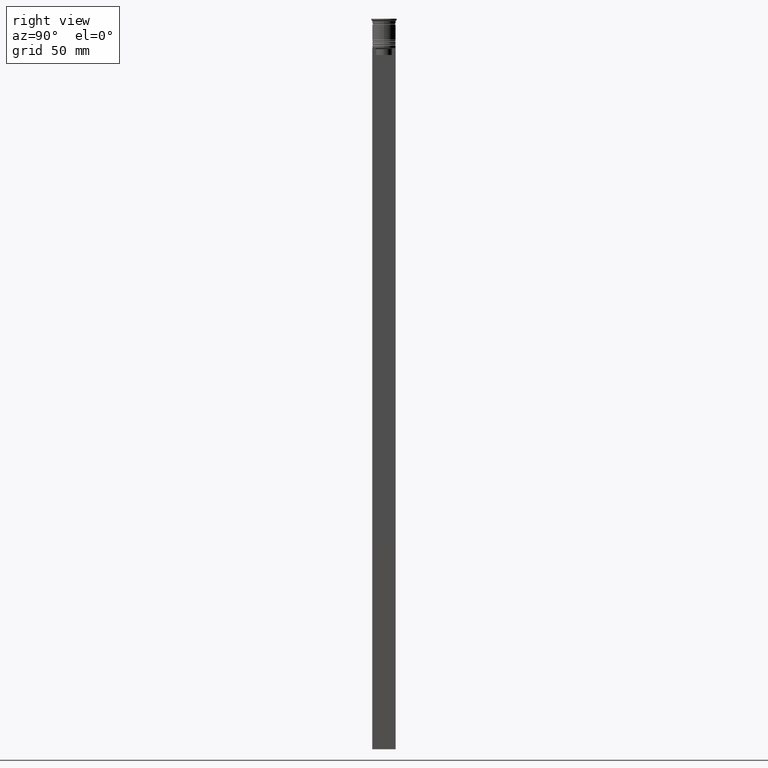
[diagram: clean part render]
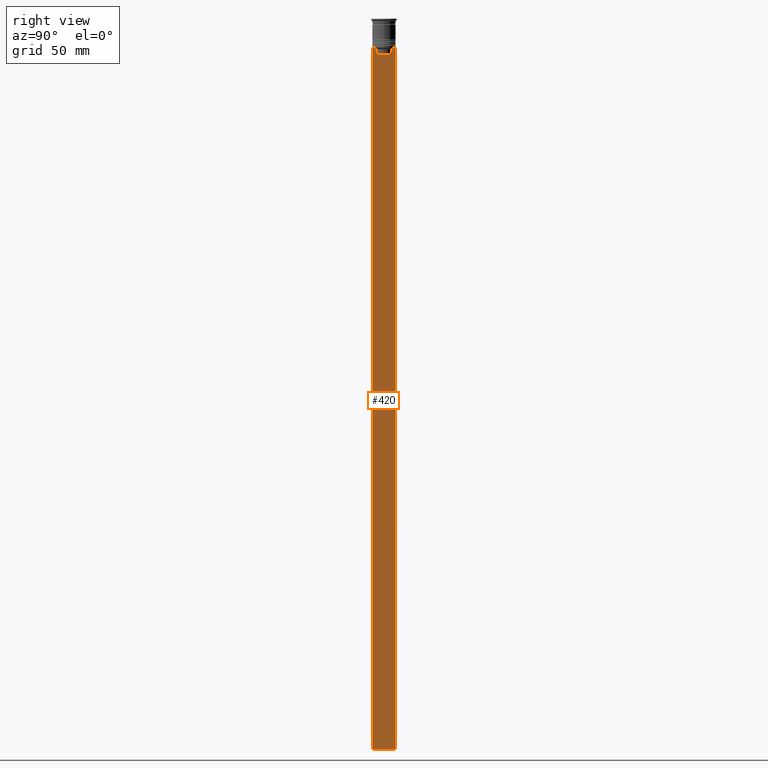
[diagram: same view with one face highlighted and labeled with its STEP entity id]
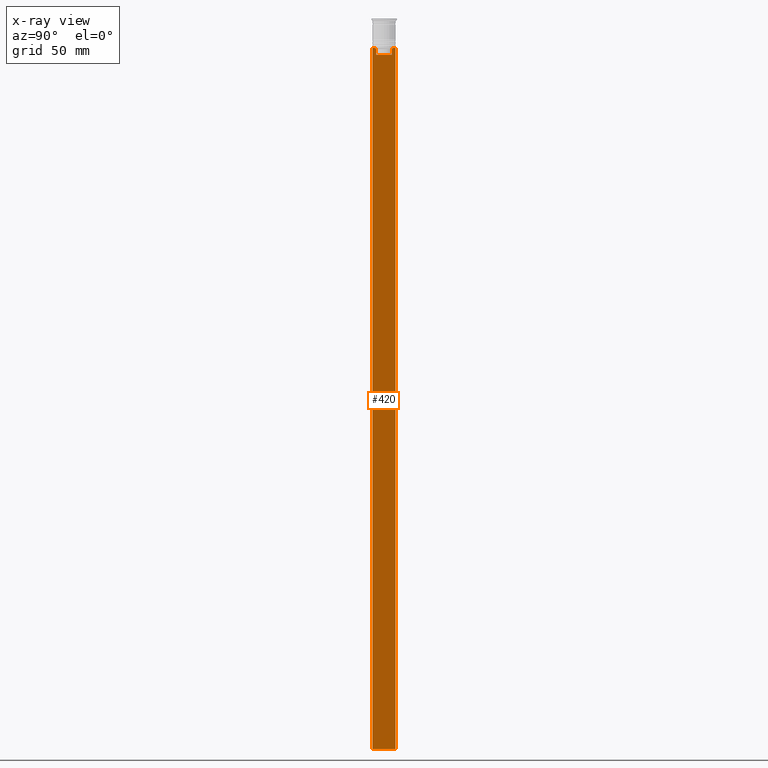
[diagram: x-ray of the same camera — body ghosted, the highlighted face saturated]
A machine part, right view. The second image highlights one B-rep face of the part: STEP entity #420.
The next image is the same camera in x-ray: the body ghosted, the highlighted face saturated — about 0% of this face is hidden behind the body in this view.
In plain terms, the highlighted planar face has unit normal (-1, 0, 0).
Its self-contained STEP definition (entity closure, byte-faithful):
#1 = CARTESIAN_POINT ( 'NONE',  ( 0.5000000000000000000, -4.999999999999999112, -312.5000000000000000 ) ) ;
#12 = CARTESIAN_POINT ( 'NONE',  ( 0.5000000000000000000, -3.531412985305424801, -12.83345201382502765 ) ) ;
#60 = VERTEX_POINT ( 'NONE', #981 ) ;
#67 = EDGE_CURVE ( 'NONE', #373, #2125, #1373, .T. ) ;
#129 = CARTESIAN_POINT ( 'NONE',  ( 0.5000000000000000000, 5.000000000000000888, -12.50000000000000000 ) ) ;
#145 = EDGE_CURVE ( 'NONE', #2465, #1955, #2222, .T. ) ;
#146 = VECTOR ( 'NONE', #2388, 1000.000000000000000 ) ;
#151 = DIRECTION ( 'NONE',  ( 0.000000000000000000, -1.000000000000000000, 0.000000000000000000 ) ) ;
#180 = EDGE_CURVE ( 'NONE', #2125, #1859, #434, .T. ) ;
#203 = CARTESIAN_POINT ( 'NONE',  ( 0.5000000000000000000, -3.867815921162742754, -12.50000000000000000 ) ) ;
#235 = EDGE_CURVE ( 'NONE', #1955, #60, #1204, .T. ) ;
#244 = ORIENTED_EDGE ( 'NONE', *, *, #438, .T. ) ;
#320 = CARTESIAN_POINT ( 'NONE',  ( 0.5000000000000000000, 3.531412678228260216, -12.83345231756357840 ) ) ;
#321 = VECTOR ( 'NONE', #1223, 1000.000000000000000 ) ;
#359 = CARTESIAN_POINT ( 'NONE',  ( 0.5000000000000000000, 3.399999999999998135, -15.50000000000000000 ) ) ;
#362 = DIRECTION ( 'NONE',  ( -1.000000000000000000, 0.000000000000000000, 0.000000000000000000 ) ) ;
#364 = DIRECTION ( 'NONE',  ( 0.000000000000000000, 0.000000000000000000, -1.000000000000000000 ) ) ;
#373 = VERTEX_POINT ( 'NONE', #1831 ) ;
#420 = ADVANCED_FACE ( 'NONE', ( #944 ), #2098, .F. ) ;
#434 = LINE ( 'NONE', #1, #321 ) ;
#438 = EDGE_CURVE ( 'NONE', #60, #2188, #604, .T. ) ;
#442 = CARTESIAN_POINT ( 'NONE',  ( 0.5000000000000000000, 3.363034344160045208, 0.000000000000000000 ) ) ;
#461 = VECTOR ( 'NONE', #151, 1000.000000000000000 ) ;
#492 = ORIENTED_EDGE ( 'NONE', *, *, #235, .T. ) ;
#506 = VECTOR ( 'NONE', #1239, 1000.000000000000000 ) ;
#533 = CARTESIAN_POINT ( 'NONE',  ( 0.5000000000000000000, -4.874423042781575788, -12.50000000000000000 ) ) ;
#587 = CARTESIAN_POINT ( 'NONE',  ( 0.5000000000000000000, -4.999999999999999112, -12.50000000000000000 ) ) ;
#588 = ORIENTED_EDGE ( 'NONE', *, *, #815, .T. ) ;
#604 = B_SPLINE_CURVE_WITH_KNOTS ( 'NONE', 3,
 ( #1731, #1163, #320, #1709 ),
 .UNSPECIFIED., .F., .F.,
 ( 4, 4 ),
 ( 0.006644825462451552783, 0.007355321358912435097 ),
 .UNSPECIFIED. ) ;
#613 = DIRECTION ( 'NONE',  ( 0.000000000000000000, -1.000000000000000000, 0.000000000000000000 ) ) ;
#631 = EDGE_CURVE ( 'NONE', #2465, #1859, #1201, .T. ) ;
#640 = DIRECTION ( 'NONE',  ( 0.000000000000000000, 0.000000000000000000, -1.000000000000000000 ) ) ;
#657 = EDGE_CURVE ( 'NONE', #1664, #373, #1612, .T. ) ;
#705 = ORIENTED_EDGE ( 'NONE', *, *, #2224, .T. ) ;
#744 = B_SPLINE_CURVE_WITH_KNOTS ( 'NONE', 3,
 ( #1804, #12, #1953, #2219 ),
 .UNSPECIFIED., .F., .F.,
 ( 4, 4 ),
 ( 0.01632394437298965648, 0.01703543518243618576 ),
 .UNSPECIFIED. ) ;
#800 = CARTESIAN_POINT ( 'NONE',  ( 0.5000000000000000000, -4.999999999999999112, -12.50000000000000000 ) ) ;
#812 = CARTESIAN_POINT ( 'NONE',  ( 0.5000000000000000000, -4.999999999999999112, -12.50000000000000000 ) ) ;
#815 = EDGE_CURVE ( 'NONE', #2188, #2526, #1437, .T. ) ;
#929 = EDGE_CURVE ( 'NONE', #2526, #2092, #1123, .T. ) ;
#944 = FACE_OUTER_BOUND ( 'NONE', #2424, .T. ) ;
#981 = CARTESIAN_POINT ( 'NONE',  ( 0.5000000000000000000, 3.867815921162742754, -12.50000000000000000 ) ) ;
#1003 = AXIS2_PLACEMENT_3D ( 'NONE', #1947, #362, #1330 ) ;
#1057 = ORIENTED_EDGE ( 'NONE', *, *, #2285, .T. ) ;
#1069 = VERTEX_POINT ( 'NONE', #1457 ) ;
#1123 = LINE ( 'NONE', #359, #461 ) ;
#1163 = CARTESIAN_POINT ( 'NONE',  ( 0.5000000000000000000, 3.699657965831574913, -12.66677026074361301 ) ) ;
#1176 = DIRECTION ( 'NONE',  ( -0.000000000000000000, -0.000000000000000000, 1.000000000000000000 ) ) ;
#1201 = LINE ( 'NONE', #2583, #2236 ) ;
#1204 = LINE ( 'NONE', #800, #146 ) ;
#1205 = VECTOR ( 'NONE', #2364, 1000.000000000000000 ) ;
#1218 = ORIENTED_EDGE ( 'NONE', *, *, #145, .T. ) ;
#1223 = DIRECTION ( 'NONE',  ( 0.000000000000000000, 1.000000000000000000, 0.000000000000000000 ) ) ;
#1239 = DIRECTION ( 'NONE',  ( 0.000000000000000000, 0.000000000000000000, -1.000000000000000000 ) ) ;
#1330 = DIRECTION ( 'NONE',  ( 0.000000000000000000, 0.000000000000000000, 1.000000000000000000 ) ) ;
#1341 = VECTOR ( 'NONE', #1176, 1000.000000000000000 ) ;
#1373 = LINE ( 'NONE', #2158, #2358 ) ;
#1434 = VERTEX_POINT ( 'NONE', #203 ) ;
#1436 = LINE ( 'NONE', #1986, #1341 ) ;
#1437 = LINE ( 'NONE', #442, #506 ) ;
#1457 = CARTESIAN_POINT ( 'NONE',  ( 0.5000000000000000000, -3.363034344160045208, -13.00000000000000178 ) ) ;
#1461 = CARTESIAN_POINT ( 'NONE',  ( 0.5000000000000000000, -4.999999999999999112, -12.50000000000000000 ) ) ;
#1466 = ORIENTED_EDGE ( 'NONE', *, *, #180, .T. ) ;
#1513 = CARTESIAN_POINT ( 'NONE',  ( 0.5000000000000000000, -4.999999999999999112, -312.5000000000000000 ) ) ;
#1612 = LINE ( 'NONE', #1461, #1946 ) ;
#1664 = VERTEX_POINT ( 'NONE', #533 ) ;
#1679 = CARTESIAN_POINT ( 'NONE',  ( 0.5000000000000000000, 4.874423042781575788, -12.50000000000000000 ) ) ;
#1709 = CARTESIAN_POINT ( 'NONE',  ( 0.5000000000000000000, 3.363034344160045208, -13.00000000000000178 ) ) ;
#1731 = CARTESIAN_POINT ( 'NONE',  ( 0.5000000000000000000, 3.867815921162742754, -12.50000000000000000 ) ) ;
#1751 = CARTESIAN_POINT ( 'NONE',  ( 0.5000000000000000000, 3.363034344160045652, -15.50000000000000000 ) ) ;
#1804 = CARTESIAN_POINT ( 'NONE',  ( 0.5000000000000000000, -3.363034344160045208, -13.00000000000000178 ) ) ;
#1809 = ORIENTED_EDGE ( 'NONE', *, *, #1852, .T. ) ;
#1831 = CARTESIAN_POINT ( 'NONE',  ( 0.5000000000000000000, -4.999999999999999112, -12.50000000000000000 ) ) ;
#1852 = EDGE_CURVE ( 'NONE', #1069, #1434, #744, .T. ) ;
#1859 = VERTEX_POINT ( 'NONE', #2207 ) ;
#1946 = VECTOR ( 'NONE', #2247, 1000.000000000000000 ) ;
#1947 = CARTESIAN_POINT ( 'NONE',  ( 0.5000000000000000000, -4.999999999999999112, -2.450124378879110054 ) ) ;
#1953 = CARTESIAN_POINT ( 'NONE',  ( 0.5000000000000000000, -3.699658232838647365, -12.66676999593996555 ) ) ;
#1955 = VERTEX_POINT ( 'NONE', #1679 ) ;
#1986 = CARTESIAN_POINT ( 'NONE',  ( 0.5000000000000000000, -3.363034344160045208, 0.000000000000000000 ) ) ;
#2092 = VERTEX_POINT ( 'NONE', #2150 ) ;
#2098 = PLANE ( 'NONE',  #1003 ) ;
#2103 = ORIENTED_EDGE ( 'NONE', *, *, #67, .T. ) ;
#2125 = VERTEX_POINT ( 'NONE', #1513 ) ;
#2150 = CARTESIAN_POINT ( 'NONE',  ( 0.5000000000000000000, -3.363034344160045652, -15.50000000000000000 ) ) ;
#2158 = CARTESIAN_POINT ( 'NONE',  ( 0.5000000000000000000, -4.999999999999999112, -2.450124378879110054 ) ) ;
#2174 = ORIENTED_EDGE ( 'NONE', *, *, #929, .T. ) ;
#2188 = VERTEX_POINT ( 'NONE', #2580 ) ;
#2207 = CARTESIAN_POINT ( 'NONE',  ( 0.5000000000000000000, 5.000000000000000888, -312.5000000000000000 ) ) ;
#2219 = CARTESIAN_POINT ( 'NONE',  ( 0.5000000000000000000, -3.867815921162742754, -12.50000000000000000 ) ) ;
#2222 = LINE ( 'NONE', #812, #1205 ) ;
#2224 = EDGE_CURVE ( 'NONE', #1434, #1664, #2395, .T. ) ;
#2236 = VECTOR ( 'NONE', #640, 1000.000000000000000 ) ;
#2247 = DIRECTION ( 'NONE',  ( 0.000000000000000000, -1.000000000000000000, 0.000000000000000000 ) ) ;
#2284 = VECTOR ( 'NONE', #613, 1000.000000000000000 ) ;
#2285 = EDGE_CURVE ( 'NONE', #2092, #1069, #1436, .T. ) ;
#2358 = VECTOR ( 'NONE', #364, 1000.000000000000000 ) ;
#2364 = DIRECTION ( 'NONE',  ( 0.000000000000000000, -1.000000000000000000, 0.000000000000000000 ) ) ;
#2388 = DIRECTION ( 'NONE',  ( 0.000000000000000000, -1.000000000000000000, 0.000000000000000000 ) ) ;
#2395 = LINE ( 'NONE', #587, #2284 ) ;
#2424 = EDGE_LOOP ( 'NONE', ( #492, #244, #588, #2174, #1057, #1809, #705, #2531, #2103, #1466, #2467, #1218 ) ) ;
#2465 = VERTEX_POINT ( 'NONE', #129 ) ;
#2467 = ORIENTED_EDGE ( 'NONE', *, *, #631, .F. ) ;
#2526 = VERTEX_POINT ( 'NONE', #1751 ) ;
#2531 = ORIENTED_EDGE ( 'NONE', *, *, #657, .T. ) ;
#2580 = CARTESIAN_POINT ( 'NONE',  ( 0.5000000000000000000, 3.363034344160045208, -13.00000000000000178 ) ) ;
#2583 = CARTESIAN_POINT ( 'NONE',  ( 0.5000000000000000000, 5.000000000000000888, -2.450124378879110054 ) ) ;